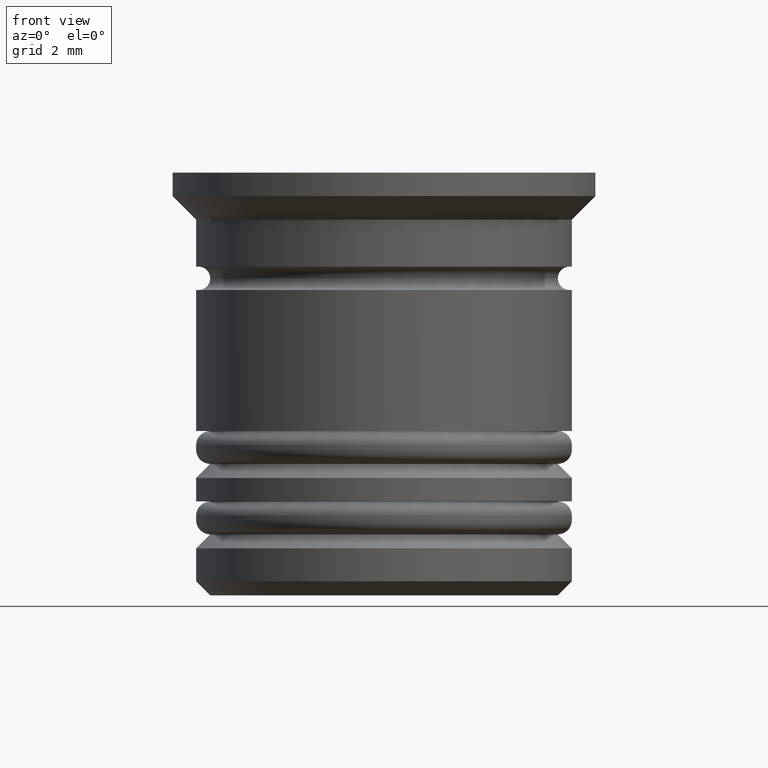
[diagram: clean part render]
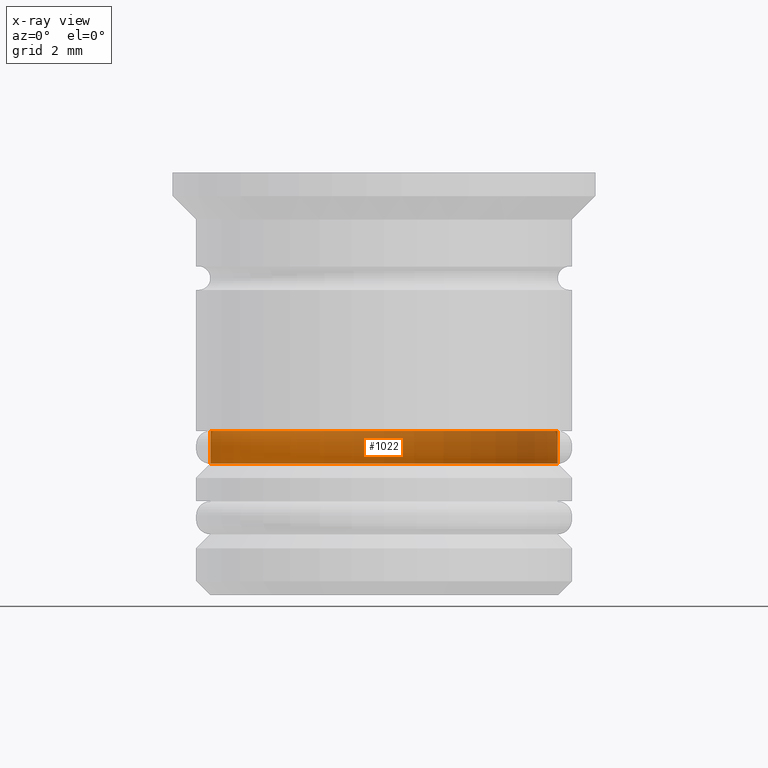
[diagram: x-ray — body ghosted, one internal face saturated and labeled with its STEP entity id]
A machine part, front view, then the same camera in x-ray: the body is ghosted and one INTERNAL B-rep face — a face not visible from any outside direction — is saturated and labeled: STEP entity #1022.
In plain terms, the highlighted cylindrical surface (partial cylindrical patch) has radius 3.7 mm, axis along (-0, -0, 1).
Its self-contained STEP definition (entity closure, byte-faithful):
#70 = CARTESIAN_POINT ( 'NONE',  ( 3.700000000000000178, 0.000000000000000000, -6.200000000000004619 ) ) ;
#75 = CIRCLE ( 'NONE', #1506, 3.700000000000000178 ) ;
#89 = EDGE_CURVE ( 'NONE', #98, #898, #546, .T. ) ;
#98 = VERTEX_POINT ( 'NONE', #70 ) ;
#123 = ORIENTED_EDGE ( 'NONE', *, *, #1968, .F. ) ;
#141 = DIRECTION ( 'NONE',  ( 1.000000000000000000, 0.000000000000000000, 0.000000000000000000 ) ) ;
#214 = CARTESIAN_POINT ( 'NONE',  ( 0.000000000000000000, 0.000000000000000000, 0.000000000000000000 ) ) ;
#353 = ORIENTED_EDGE ( 'NONE', *, *, #1369, .T. ) ;
#438 = VECTOR ( 'NONE', #1355, 1000.000000000000000 ) ;
#541 = ORIENTED_EDGE ( 'NONE', *, *, #1142, .T. ) ;
#546 = LINE ( 'NONE', #1802, #1447 ) ;
#691 = DIRECTION ( 'NONE',  ( -0.000000000000000000, -0.000000000000000000, 1.000000000000000000 ) ) ;
#762 = VERTEX_POINT ( 'NONE', #1194 ) ;
#869 = VERTEX_POINT ( 'NONE', #1907 ) ;
#898 = VERTEX_POINT ( 'NONE', #980 ) ;
#947 = CIRCLE ( 'NONE', #1644, 3.700000000000000178 ) ;
#973 = ORIENTED_EDGE ( 'NONE', *, *, #89, .F. ) ;
#980 = CARTESIAN_POINT ( 'NONE',  ( 3.700000000000000178, 0.000000000000000000, -5.500000000000000000 ) ) ;
#994 = CYLINDRICAL_SURFACE ( 'NONE', #1352, 3.700000000000000178 ) ;
#1022 = ADVANCED_FACE ( 'NONE', ( #1138 ), #994, .T. ) ;
#1121 = CARTESIAN_POINT ( 'NONE',  ( 0.000000000000000000, 0.000000000000000000, -6.200000000000004619 ) ) ;
#1138 = FACE_OUTER_BOUND ( 'NONE', #1727, .T. ) ;
#1142 = EDGE_CURVE ( 'NONE', #98, #869, #75, .T. ) ;
#1194 = CARTESIAN_POINT ( 'NONE',  ( -3.700000000000000178, 4.531193156845206201E-16, -5.500000000000000000 ) ) ;
#1255 = DIRECTION ( 'NONE',  ( -1.000000000000000000, 0.000000000000000000, 0.000000000000000000 ) ) ;
#1352 = AXIS2_PLACEMENT_3D ( 'NONE', #214, #691, #1775 ) ;
#1355 = DIRECTION ( 'NONE',  ( -0.000000000000000000, -0.000000000000000000, 1.000000000000000000 ) ) ;
#1369 = EDGE_CURVE ( 'NONE', #869, #762, #1888, .T. ) ;
#1388 = CARTESIAN_POINT ( 'NONE',  ( -3.700000000000000178, 4.531193156845206201E-16, 0.000000000000000000 ) ) ;
#1447 = VECTOR ( 'NONE', #1628, 1000.000000000000000 ) ;
#1506 = AXIS2_PLACEMENT_3D ( 'NONE', #1121, #1762, #1255 ) ;
#1628 = DIRECTION ( 'NONE',  ( -0.000000000000000000, -0.000000000000000000, 1.000000000000000000 ) ) ;
#1644 = AXIS2_PLACEMENT_3D ( 'NONE', #1674, #2018, #141 ) ;
#1674 = CARTESIAN_POINT ( 'NONE',  ( 0.000000000000000000, 0.000000000000000000, -5.500000000000000000 ) ) ;
#1727 = EDGE_LOOP ( 'NONE', ( #541, #353, #123, #973 ) ) ;
#1762 = DIRECTION ( 'NONE',  ( -0.000000000000000000, -0.000000000000000000, 1.000000000000000000 ) ) ;
#1775 = DIRECTION ( 'NONE',  ( 1.000000000000000000, 0.000000000000000000, 0.000000000000000000 ) ) ;
#1802 = CARTESIAN_POINT ( 'NONE',  ( 3.700000000000000178, 0.000000000000000000, 0.000000000000000000 ) ) ;
#1888 = LINE ( 'NONE', #1388, #438 ) ;
#1907 = CARTESIAN_POINT ( 'NONE',  ( -3.700000000000000178, 4.531193156845206201E-16, -6.200000000000004619 ) ) ;
#1968 = EDGE_CURVE ( 'NONE', #898, #762, #947, .T. ) ;
#2018 = DIRECTION ( 'NONE',  ( -0.000000000000000000, -0.000000000000000000, 1.000000000000000000 ) ) ;